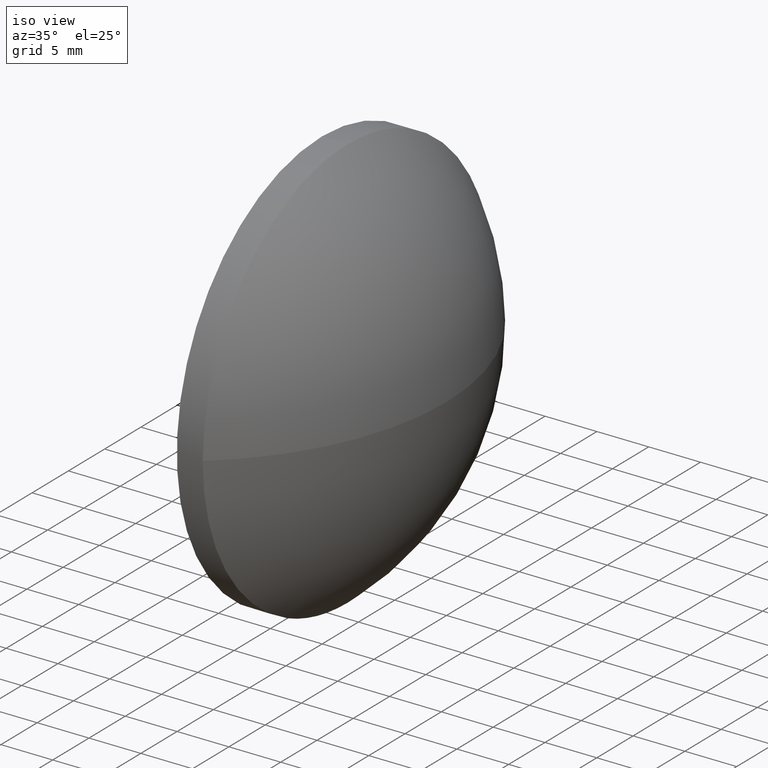
[diagram: clean part render]
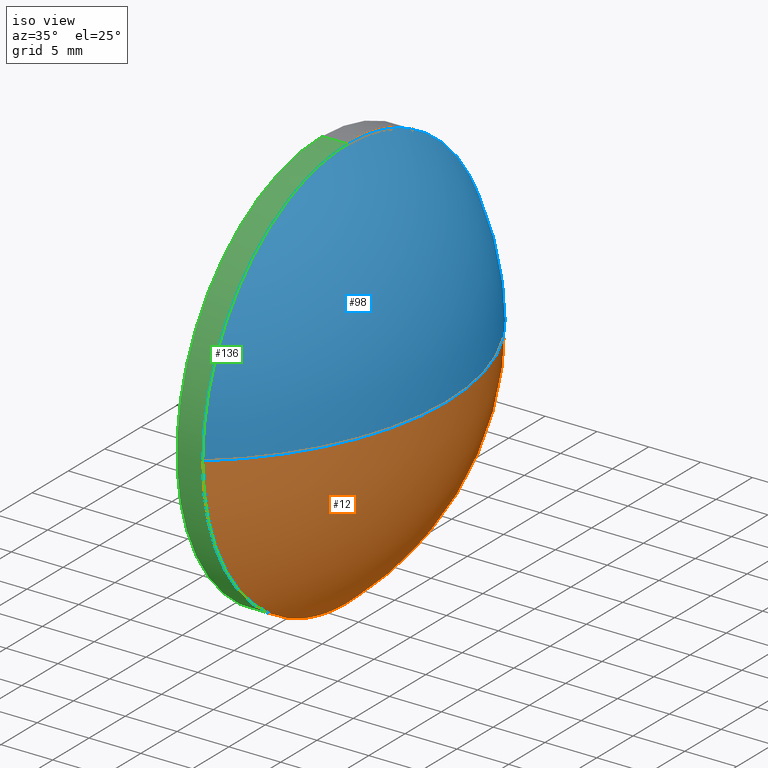
[diagram: same view with three faces highlighted in distinct colors, each labeled with its STEP entity id]
A machine part, iso view with three faces highlighted in distinct colors.
Their STEP definitions:

[orange] entity #12 — the highlighted spherical surface has radius 25.837 mm.
#10 = DIRECTION ( 'NONE',  ( -1.000000000000000000, -0.0000000000000000000, -0.0000000000000000000 ) ) ;
#12 = ADVANCED_FACE ( 'NONE', ( #87 ), #143, .T. ) ;
#14 = VERTEX_POINT ( 'NONE', #173 ) ;
#16 = DIRECTION ( 'NONE',  ( -0.0000000000000000000, 0.0000000000000000000, 1.000000000000000000 ) ) ;
#17 = DIRECTION ( 'NONE',  ( -1.000000000000000000, -0.0000000000000000000, -0.0000000000000000000 ) ) ;
#19 = AXIS2_PLACEMENT_3D ( 'NONE', #63, #17, #118 ) ;
#26 = CARTESIAN_POINT ( 'NONE',  ( 426.9406855136076000, 15.96846071978551300, 0.0000000000000000000 ) ) ;
#40 = ORIENTED_EDGE ( 'NONE', *, *, #80, .F. ) ;
#41 = AXIS2_PLACEMENT_3D ( 'NONE', #77, #10, #166 ) ;
#55 = EDGE_CURVE ( 'NONE', #82, #14, #99, .T. ) ;
#60 = DIRECTION ( 'NONE',  ( -0.0000000000000000000, 0.0000000000000000000, -1.000000000000000000 ) ) ;
#63 = CARTESIAN_POINT ( 'NONE',  ( 443.2977319271096800, 15.96846071978552600, 0.0000000000000000000 ) ) ;
#70 = EDGE_CURVE ( 'NONE', #71, #14, #182, .T. ) ;
#71 = VERTEX_POINT ( 'NONE', #131 ) ;
#72 = DIRECTION ( 'NONE',  ( 0.0000000000000000000, 1.224646799147353200E-016, -1.000000000000000000 ) ) ;
#74 = CARTESIAN_POINT ( 'NONE',  ( 443.2977319271096800, 35.96846071978551900, 0.0000000000000000000 ) ) ;
#75 = ORIENTED_EDGE ( 'NONE', *, *, #150, .F. ) ;
#77 = CARTESIAN_POINT ( 'NONE',  ( 443.2977319271096800, 15.96846071978552600, 0.0000000000000000000 ) ) ;
#80 = EDGE_CURVE ( 'NONE', #82, #89, #177, .T. ) ;
#82 = VERTEX_POINT ( 'NONE', #93 ) ;
#85 = ORIENTED_EDGE ( 'NONE', *, *, #55, .T. ) ;
#87 = FACE_OUTER_BOUND ( 'NONE', #95, .T. ) ;
#89 = VERTEX_POINT ( 'NONE', #74 ) ;
#93 = CARTESIAN_POINT ( 'NONE',  ( 452.7777319271097000, 15.96846071978551300, 0.0000000000000000000 ) ) ;
#95 = EDGE_LOOP ( 'NONE', ( #40, #85, #114, #75 ) ) ;
#99 = CIRCLE ( 'NONE', #171, 25.83704641350211200 ) ;
#104 = CARTESIAN_POINT ( 'NONE',  ( 426.9406855136076000, 15.96846071978551300, 0.0000000000000000000 ) ) ;
#108 = AXIS2_PLACEMENT_3D ( 'NONE', #104, #16, #130 ) ;
#114 = ORIENTED_EDGE ( 'NONE', *, *, #70, .F. ) ;
#118 = DIRECTION ( 'NONE',  ( 0.0000000000000000000, 0.0000000000000000000, 1.000000000000000000 ) ) ;
#126 = CARTESIAN_POINT ( 'NONE',  ( 426.9406855136076000, 15.96846071978551300, 0.0000000000000000000 ) ) ;
#127 = AXIS2_PLACEMENT_3D ( 'NONE', #26, #60, #157 ) ;
#130 = DIRECTION ( 'NONE',  ( 1.000000000000000000, 0.0000000000000000000, 0.0000000000000000000 ) ) ;
#131 = CARTESIAN_POINT ( 'NONE',  ( 443.2977319271096800, 15.96846071978552900, -19.99999999999999600 ) ) ;
#143 = SPHERICAL_SURFACE ( 'NONE', #127, 25.83704641350210800 ) ;
#150 = EDGE_CURVE ( 'NONE', #89, #71, #184, .T. ) ;
#157 = DIRECTION ( 'NONE',  ( 0.0000000000000000000, 1.000000000000000000, 0.0000000000000000000 ) ) ;
#166 = DIRECTION ( 'NONE',  ( 0.0000000000000000000, 0.0000000000000000000, 1.000000000000000000 ) ) ;
#171 = AXIS2_PLACEMENT_3D ( 'NONE', #126, #72, #175 ) ;
#173 = CARTESIAN_POINT ( 'NONE',  ( 443.2977319271096800, -4.031539280214476900, -2.449293598294705300E-015 ) ) ;
#175 = DIRECTION ( 'NONE',  ( 0.0000000000000000000, 1.000000000000000000, 1.224646799147353000E-016 ) ) ;
#177 = CIRCLE ( 'NONE', #108, 25.83704641350209700 ) ;
#182 = CIRCLE ( 'NONE', #19, 19.99999999999999600 ) ;
#184 = CIRCLE ( 'NONE', #41, 19.99999999999999600 ) ;

[blue] entity #98 — the highlighted spherical surface has radius 25.837 mm.
#3 = CIRCLE ( 'NONE', #123, 19.99999999999999600 ) ;
#5 = DIRECTION ( 'NONE',  ( 0.0000000000000000000, 0.0000000000000000000, 1.000000000000000000 ) ) ;
#14 = VERTEX_POINT ( 'NONE', #173 ) ;
#16 = DIRECTION ( 'NONE',  ( -0.0000000000000000000, 0.0000000000000000000, 1.000000000000000000 ) ) ;
#27 = ORIENTED_EDGE ( 'NONE', *, *, #94, .F. ) ;
#28 = CARTESIAN_POINT ( 'NONE',  ( 426.9406855136076000, 15.96846071978551300, 0.0000000000000000000 ) ) ;
#32 = AXIS2_PLACEMENT_3D ( 'NONE', #28, #146, #88 ) ;
#37 = AXIS2_PLACEMENT_3D ( 'NONE', #176, #119, #5 ) ;
#46 = CARTESIAN_POINT ( 'NONE',  ( 443.2977319271096800, 15.96846071978552600, 19.99999999999999600 ) ) ;
#51 = SPHERICAL_SURFACE ( 'NONE', #32, 25.83704641350210800 ) ;
#52 = VERTEX_POINT ( 'NONE', #46 ) ;
#55 = EDGE_CURVE ( 'NONE', #82, #14, #99, .T. ) ;
#59 = CIRCLE ( 'NONE', #37, 19.99999999999999600 ) ;
#72 = DIRECTION ( 'NONE',  ( 0.0000000000000000000, 1.224646799147353200E-016, -1.000000000000000000 ) ) ;
#73 = ORIENTED_EDGE ( 'NONE', *, *, #80, .T. ) ;
#74 = CARTESIAN_POINT ( 'NONE',  ( 443.2977319271096800, 35.96846071978551900, 0.0000000000000000000 ) ) ;
#78 = EDGE_LOOP ( 'NONE', ( #117, #73, #27, #156 ) ) ;
#79 = DIRECTION ( 'NONE',  ( 0.0000000000000000000, 0.0000000000000000000, 1.000000000000000000 ) ) ;
#80 = EDGE_CURVE ( 'NONE', #82, #89, #177, .T. ) ;
#82 = VERTEX_POINT ( 'NONE', #93 ) ;
#88 = DIRECTION ( 'NONE',  ( 0.0000000000000000000, 1.000000000000000000, 0.0000000000000000000 ) ) ;
#89 = VERTEX_POINT ( 'NONE', #74 ) ;
#93 = CARTESIAN_POINT ( 'NONE',  ( 452.7777319271097000, 15.96846071978551300, 0.0000000000000000000 ) ) ;
#94 = EDGE_CURVE ( 'NONE', #52, #89, #59, .T. ) ;
#98 = ADVANCED_FACE ( 'NONE', ( #168 ), #51, .T. ) ;
#99 = CIRCLE ( 'NONE', #171, 25.83704641350211200 ) ;
#104 = CARTESIAN_POINT ( 'NONE',  ( 426.9406855136076000, 15.96846071978551300, 0.0000000000000000000 ) ) ;
#108 = AXIS2_PLACEMENT_3D ( 'NONE', #104, #16, #130 ) ;
#113 = DIRECTION ( 'NONE',  ( -1.000000000000000000, -0.0000000000000000000, -0.0000000000000000000 ) ) ;
#117 = ORIENTED_EDGE ( 'NONE', *, *, #55, .F. ) ;
#119 = DIRECTION ( 'NONE',  ( -1.000000000000000000, -0.0000000000000000000, -0.0000000000000000000 ) ) ;
#123 = AXIS2_PLACEMENT_3D ( 'NONE', #152, #113, #79 ) ;
#126 = CARTESIAN_POINT ( 'NONE',  ( 426.9406855136076000, 15.96846071978551300, 0.0000000000000000000 ) ) ;
#130 = DIRECTION ( 'NONE',  ( 1.000000000000000000, 0.0000000000000000000, 0.0000000000000000000 ) ) ;
#140 = EDGE_CURVE ( 'NONE', #14, #52, #3, .T. ) ;
#146 = DIRECTION ( 'NONE',  ( -0.0000000000000000000, 0.0000000000000000000, -1.000000000000000000 ) ) ;
#152 = CARTESIAN_POINT ( 'NONE',  ( 443.2977319271096800, 15.96846071978552600, 0.0000000000000000000 ) ) ;
#156 = ORIENTED_EDGE ( 'NONE', *, *, #140, .F. ) ;
#168 = FACE_OUTER_BOUND ( 'NONE', #78, .T. ) ;
#171 = AXIS2_PLACEMENT_3D ( 'NONE', #126, #72, #175 ) ;
#173 = CARTESIAN_POINT ( 'NONE',  ( 443.2977319271096800, -4.031539280214476900, -2.449293598294705300E-015 ) ) ;
#175 = DIRECTION ( 'NONE',  ( 0.0000000000000000000, 1.000000000000000000, 1.224646799147353000E-016 ) ) ;
#176 = CARTESIAN_POINT ( 'NONE',  ( 443.2977319271096800, 15.96846071978552600, 0.0000000000000000000 ) ) ;
#177 = CIRCLE ( 'NONE', #108, 25.83704641350209700 ) ;

[green] entity #136 — the highlighted cylindrical surface (partial cylindrical patch) has radius 20 mm, axis along (-1, -0, -0).
#2 = ORIENTED_EDGE ( 'NONE', *, *, #22, .F. ) ;
#3 = CIRCLE ( 'NONE', #123, 19.99999999999999600 ) ;
#4 = ORIENTED_EDGE ( 'NONE', *, *, #97, .F. ) ;
#6 = DIRECTION ( 'NONE',  ( -1.000000000000000000, -0.0000000000000000000, -0.0000000000000000000 ) ) ;
#8 = LINE ( 'NONE', #29, #178 ) ;
#14 = VERTEX_POINT ( 'NONE', #173 ) ;
#15 = EDGE_LOOP ( 'NONE', ( #4, #23, #170, #124, #2 ) ) ;
#17 = DIRECTION ( 'NONE',  ( -1.000000000000000000, -0.0000000000000000000, -0.0000000000000000000 ) ) ;
#19 = AXIS2_PLACEMENT_3D ( 'NONE', #63, #17, #118 ) ;
#20 = VECTOR ( 'NONE', #6, 1000.000000000000000 ) ;
#22 = EDGE_CURVE ( 'NONE', #151, #144, #122, .T. ) ;
#23 = ORIENTED_EDGE ( 'NONE', *, *, #70, .T. ) ;
#29 = CARTESIAN_POINT ( 'NONE',  ( 436.8327783161237200, 15.96846071978552600, 19.99999999999999600 ) ) ;
#36 = CARTESIAN_POINT ( 'NONE',  ( 440.7977319271096800, 15.96846071978552600, 19.99999999999999600 ) ) ;
#43 = FACE_OUTER_BOUND ( 'NONE', #15, .T. ) ;
#46 = CARTESIAN_POINT ( 'NONE',  ( 443.2977319271096800, 15.96846071978552600, 19.99999999999999600 ) ) ;
#47 = DIRECTION ( 'NONE',  ( 0.0000000000000000000, 0.0000000000000000000, 1.000000000000000000 ) ) ;
#48 = CARTESIAN_POINT ( 'NONE',  ( 436.8327783161237200, 15.96846071978552900, -19.99999999999999600 ) ) ;
#52 = VERTEX_POINT ( 'NONE', #46 ) ;
#63 = CARTESIAN_POINT ( 'NONE',  ( 443.2977319271096800, 15.96846071978552600, 0.0000000000000000000 ) ) ;
#70 = EDGE_CURVE ( 'NONE', #71, #14, #182, .T. ) ;
#71 = VERTEX_POINT ( 'NONE', #131 ) ;
#76 = CYLINDRICAL_SURFACE ( 'NONE', #174, 19.99999999999999600 ) ;
#79 = DIRECTION ( 'NONE',  ( 0.0000000000000000000, 0.0000000000000000000, 1.000000000000000000 ) ) ;
#86 = DIRECTION ( 'NONE',  ( 0.0000000000000000000, 0.0000000000000000000, 1.000000000000000000 ) ) ;
#97 = EDGE_CURVE ( 'NONE', #71, #151, #138, .T. ) ;
#100 = AXIS2_PLACEMENT_3D ( 'NONE', #145, #160, #86 ) ;
#113 = DIRECTION ( 'NONE',  ( -1.000000000000000000, -0.0000000000000000000, -0.0000000000000000000 ) ) ;
#116 = EDGE_CURVE ( 'NONE', #52, #144, #8, .T. ) ;
#118 = DIRECTION ( 'NONE',  ( 0.0000000000000000000, 0.0000000000000000000, 1.000000000000000000 ) ) ;
#122 = CIRCLE ( 'NONE', #100, 19.99999999999999600 ) ;
#123 = AXIS2_PLACEMENT_3D ( 'NONE', #152, #113, #79 ) ;
#124 = ORIENTED_EDGE ( 'NONE', *, *, #116, .T. ) ;
#128 = CARTESIAN_POINT ( 'NONE',  ( 436.8327783161237200, 15.96846071978552600, 0.0000000000000000000 ) ) ;
#131 = CARTESIAN_POINT ( 'NONE',  ( 443.2977319271096800, 15.96846071978552900, -19.99999999999999600 ) ) ;
#136 = ADVANCED_FACE ( 'NONE', ( #43 ), #76, .T. ) ;
#138 = LINE ( 'NONE', #48, #20 ) ;
#140 = EDGE_CURVE ( 'NONE', #14, #52, #3, .T. ) ;
#144 = VERTEX_POINT ( 'NONE', #36 ) ;
#145 = CARTESIAN_POINT ( 'NONE',  ( 440.7977319271096800, 15.96846071978552600, 0.0000000000000000000 ) ) ;
#147 = DIRECTION ( 'NONE',  ( -1.000000000000000000, -0.0000000000000000000, -0.0000000000000000000 ) ) ;
#151 = VERTEX_POINT ( 'NONE', #181 ) ;
#152 = CARTESIAN_POINT ( 'NONE',  ( 443.2977319271096800, 15.96846071978552600, 0.0000000000000000000 ) ) ;
#160 = DIRECTION ( 'NONE',  ( -1.000000000000000000, -0.0000000000000000000, -0.0000000000000000000 ) ) ;
#161 = DIRECTION ( 'NONE',  ( -1.000000000000000000, -0.0000000000000000000, -0.0000000000000000000 ) ) ;
#170 = ORIENTED_EDGE ( 'NONE', *, *, #140, .T. ) ;
#173 = CARTESIAN_POINT ( 'NONE',  ( 443.2977319271096800, -4.031539280214476900, -2.449293598294705300E-015 ) ) ;
#174 = AXIS2_PLACEMENT_3D ( 'NONE', #128, #147, #47 ) ;
#178 = VECTOR ( 'NONE', #161, 1000.000000000000000 ) ;
#181 = CARTESIAN_POINT ( 'NONE',  ( 440.7977319271096800, 15.96846071978552900, -19.99999999999999600 ) ) ;
#182 = CIRCLE ( 'NONE', #19, 19.99999999999999600 ) ;